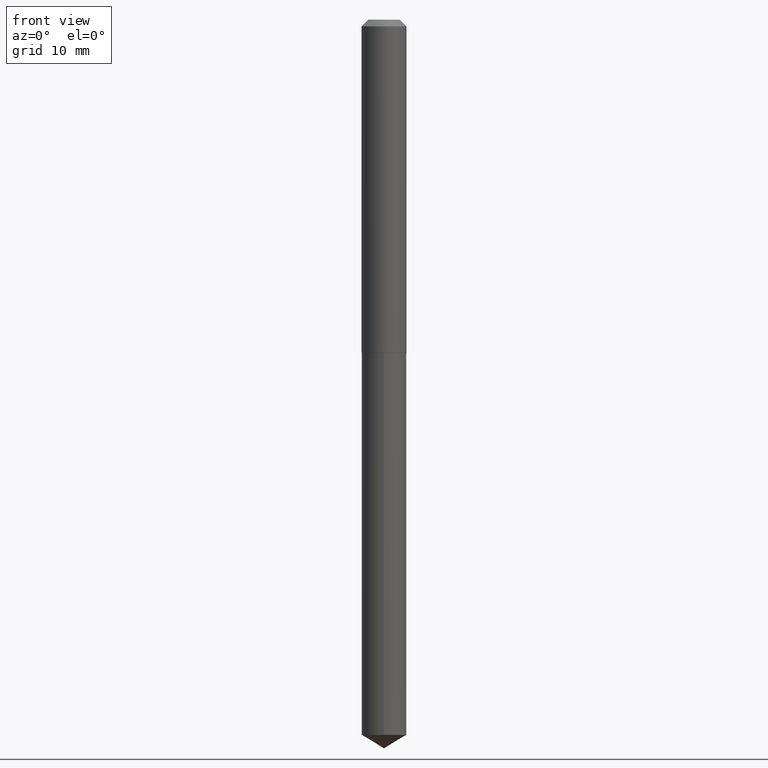
[diagram: clean part render]
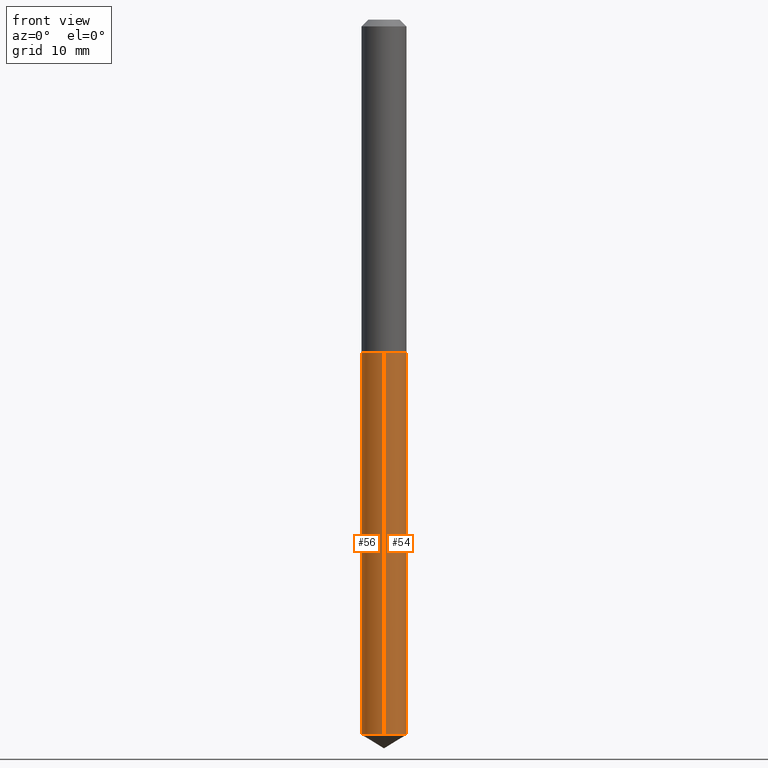
[diagram: same view with one multi-face feature highlighted, each face labeled with its STEP entity id]
A machine part, front view. The highlighted faces form ONE feature: a constant-radius fillet chain: 2 tangent blend faces with common blend radius 2.6505 mm. The faces share edges in the B-rep.
Their STEP definitions:
[1] entity #54 (Cylinder):
#19 = EDGE_CURVE ( 'NONE', #64, #291, #369, .T. ) ;
#25 = DIRECTION ( 'NONE',  ( -6.982962677686265922E-15, -1.000000000000000000, 5.235932905920965262E-15 ) ) ;
#43 = AXIS2_PLACEMENT_3D ( 'NONE', #267, #62, #25 ) ;
#44 = CARTESIAN_POINT ( 'NONE',  ( 7.414513447657459819E-16, 0.1043499999999945999, -1.547300000000000120 ) ) ;
#46 = CARTESIAN_POINT ( 'NONE',  ( 7.414513447657022001E-16, 0.1043499999999945999, -1.547300000000000120 ) ) ;
#54 = ADVANCED_FACE ( 'NONE', ( #389 ), #366, .T. ) ;
#62 = DIRECTION ( 'NONE',  ( -2.445447890041031714E-29, 3.491511291951976726E-15, 1.000000000000000000 ) ) ;
#64 = VERTEX_POINT ( 'NONE', #314 ) ;
#79 = LINE ( 'NONE', #46, #248 ) ;
#93 = CARTESIAN_POINT ( 'NONE',  ( 3.783873883810261606E-29, -5.402369075591998725E-15, -1.547299999999999898 ) ) ;
#99 = DIRECTION ( 'NONE',  ( -2.445447890041031714E-29, 3.491511291951976726E-15, 1.000000000000000000 ) ) ;
#134 = DIRECTION ( 'NONE',  ( -2.445447890041031714E-29, 3.491511291951976331E-15, 1.000000000000000000 ) ) ;
#136 = CARTESIAN_POINT ( 'NONE',  ( 7.414513447657457846E-16, 0.1043499999999883965, -3.323100194404474905 ) ) ;
#142 = VERTEX_POINT ( 'NONE', #255 ) ;
#144 = VECTOR ( 'NONE', #134, 39.37007874015748143 ) ;
#157 = DIRECTION ( 'NONE',  ( -2.445447890041031714E-29, 3.491511291951976726E-15, 1.000000000000000000 ) ) ;
#192 = CARTESIAN_POINT ( 'NONE',  ( 3.783873883810261606E-29, -5.402369075591998725E-15, -1.547299999999999898 ) ) ;
#247 = AXIS2_PLACEMENT_3D ( 'NONE', #93, #157, #335 ) ;
#248 = VECTOR ( 'NONE', #260, 39.37007874015748143 ) ;
#250 = EDGE_CURVE ( 'NONE', #142, #262, #253, .T. ) ;
#253 = CIRCLE ( 'NONE', #336, 0.1043499999999999844 ) ;
#255 = CARTESIAN_POINT ( 'NONE',  ( -7.286721554165238553E-16, -0.1043500000000053829, -1.547299999999999676 ) ) ;
#260 = DIRECTION ( 'NONE',  ( -2.445447890041031714E-29, 3.491511291951976331E-15, 1.000000000000000000 ) ) ;
#262 = VERTEX_POINT ( 'NONE', #44 ) ;
#267 = CARTESIAN_POINT ( 'NONE',  ( 8.126500722351138836E-29, -1.160259550660573708E-14, -3.323100194404474461 ) ) ;
#271 = ORIENTED_EDGE ( 'NONE', *, *, #306, .T. ) ;
#289 = EDGE_CURVE ( 'NONE', #64, #142, #383, .T. ) ;
#291 = VERTEX_POINT ( 'NONE', #136 ) ;
#297 = EDGE_LOOP ( 'NONE', ( #302, #271, #332, #378 ) ) ;
#302 = ORIENTED_EDGE ( 'NONE', *, *, #19, .T. ) ;
#306 = EDGE_CURVE ( 'NONE', #291, #262, #79, .T. ) ;
#314 = CARTESIAN_POINT ( 'NONE',  ( -7.286721554164805666E-16, -0.1043500000000116140, -3.323100194404473573 ) ) ;
#316 = DIRECTION ( 'NONE',  ( -6.982962677686265922E-15, -1.000000000000000000, 2.617966452960482631E-15 ) ) ;
#319 = CARTESIAN_POINT ( 'NONE',  ( -7.286721554165238553E-16, -0.1043500000000053829, -1.547299999999999676 ) ) ;
#332 = ORIENTED_EDGE ( 'NONE', *, *, #250, .F. ) ;
#335 = DIRECTION ( 'NONE',  ( -6.982962677686265922E-15, -1.000000000000000000, 2.617966452960482631E-15 ) ) ;
#336 = AXIS2_PLACEMENT_3D ( 'NONE', #192, #99, #316 ) ;
#366 = CYLINDRICAL_SURFACE ( 'NONE', #247, 0.1043499999999999844 ) ;
#369 = CIRCLE ( 'NONE', #43, 0.1043499999999999844 ) ;
#378 = ORIENTED_EDGE ( 'NONE', *, *, #289, .F. ) ;
#383 = LINE ( 'NONE', #319, #144 ) ;
#389 = FACE_OUTER_BOUND ( 'NONE', #297, .T. ) ;
[2] entity #56 (Cylinder):
#10 = DIRECTION ( 'NONE',  ( -6.982962677686265922E-15, -1.000000000000000000, 2.617966452960482631E-15 ) ) ;
#18 = ORIENTED_EDGE ( 'NONE', *, *, #237, .T. ) ;
#34 = CARTESIAN_POINT ( 'NONE',  ( 3.783873883810261606E-29, -5.402369075591998725E-15, -1.547299999999999898 ) ) ;
#44 = CARTESIAN_POINT ( 'NONE',  ( 7.414513447657459819E-16, 0.1043499999999945999, -1.547300000000000120 ) ) ;
#46 = CARTESIAN_POINT ( 'NONE',  ( 7.414513447657022001E-16, 0.1043499999999945999, -1.547300000000000120 ) ) ;
#52 = CIRCLE ( 'NONE', #324, 0.1043499999999999844 ) ;
#56 = ADVANCED_FACE ( 'NONE', ( #244 ), #338, .T. ) ;
#64 = VERTEX_POINT ( 'NONE', #314 ) ;
#75 = DIRECTION ( 'NONE',  ( -6.982962677686265922E-15, -1.000000000000000000, 5.235932905920965262E-15 ) ) ;
#79 = LINE ( 'NONE', #46, #248 ) ;
#108 = ORIENTED_EDGE ( 'NONE', *, *, #289, .T. ) ;
#125 = DIRECTION ( 'NONE',  ( -2.445447890041031714E-29, 3.491511291951976726E-15, 1.000000000000000000 ) ) ;
#134 = DIRECTION ( 'NONE',  ( -2.445447890041031714E-29, 3.491511291951976331E-15, 1.000000000000000000 ) ) ;
#136 = CARTESIAN_POINT ( 'NONE',  ( 7.414513447657457846E-16, 0.1043499999999883965, -3.323100194404474905 ) ) ;
#138 = DIRECTION ( 'NONE',  ( -6.982962677686265922E-15, -1.000000000000000000, 2.617966452960482631E-15 ) ) ;
#141 = CARTESIAN_POINT ( 'NONE',  ( 3.783873883810261606E-29, -5.402369075591998725E-15, -1.547299999999999898 ) ) ;
#142 = VERTEX_POINT ( 'NONE', #255 ) ;
#143 = AXIS2_PLACEMENT_3D ( 'NONE', #34, #125, #10 ) ;
#144 = VECTOR ( 'NONE', #134, 39.37007874015748143 ) ;
#145 = ORIENTED_EDGE ( 'NONE', *, *, #299, .F. ) ;
#158 = DIRECTION ( 'NONE',  ( -2.445447890041031714E-29, 3.491511291951976726E-15, 1.000000000000000000 ) ) ;
#174 = DIRECTION ( 'NONE',  ( -2.445447890041031714E-29, 3.491511291951976726E-15, 1.000000000000000000 ) ) ;
#207 = AXIS2_PLACEMENT_3D ( 'NONE', #141, #174, #138 ) ;
#226 = EDGE_LOOP ( 'NONE', ( #234, #18, #108, #145 ) ) ;
#234 = ORIENTED_EDGE ( 'NONE', *, *, #306, .F. ) ;
#237 = EDGE_CURVE ( 'NONE', #291, #64, #52, .T. ) ;
#244 = FACE_OUTER_BOUND ( 'NONE', #226, .T. ) ;
#248 = VECTOR ( 'NONE', #260, 39.37007874015748143 ) ;
#255 = CARTESIAN_POINT ( 'NONE',  ( -7.286721554165238553E-16, -0.1043500000000053829, -1.547299999999999676 ) ) ;
#260 = DIRECTION ( 'NONE',  ( -2.445447890041031714E-29, 3.491511291951976331E-15, 1.000000000000000000 ) ) ;
#262 = VERTEX_POINT ( 'NONE', #44 ) ;
#274 = CIRCLE ( 'NONE', #207, 0.1043499999999999844 ) ;
#289 = EDGE_CURVE ( 'NONE', #64, #142, #383, .T. ) ;
#291 = VERTEX_POINT ( 'NONE', #136 ) ;
#299 = EDGE_CURVE ( 'NONE', #262, #142, #274, .T. ) ;
#306 = EDGE_CURVE ( 'NONE', #291, #262, #79, .T. ) ;
#313 = CARTESIAN_POINT ( 'NONE',  ( 8.126500722351138836E-29, -1.160259550660573708E-14, -3.323100194404474461 ) ) ;
#314 = CARTESIAN_POINT ( 'NONE',  ( -7.286721554164805666E-16, -0.1043500000000116140, -3.323100194404473573 ) ) ;
#319 = CARTESIAN_POINT ( 'NONE',  ( -7.286721554165238553E-16, -0.1043500000000053829, -1.547299999999999676 ) ) ;
#324 = AXIS2_PLACEMENT_3D ( 'NONE', #313, #158, #75 ) ;
#338 = CYLINDRICAL_SURFACE ( 'NONE', #143, 0.1043499999999999844 ) ;
#383 = LINE ( 'NONE', #319, #144 ) ;